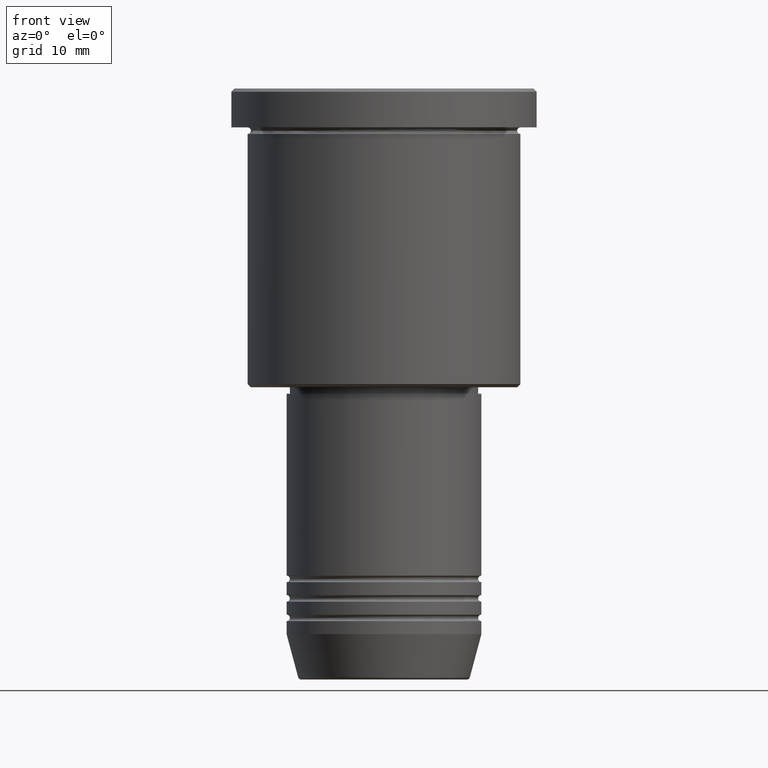
[diagram: clean part render]
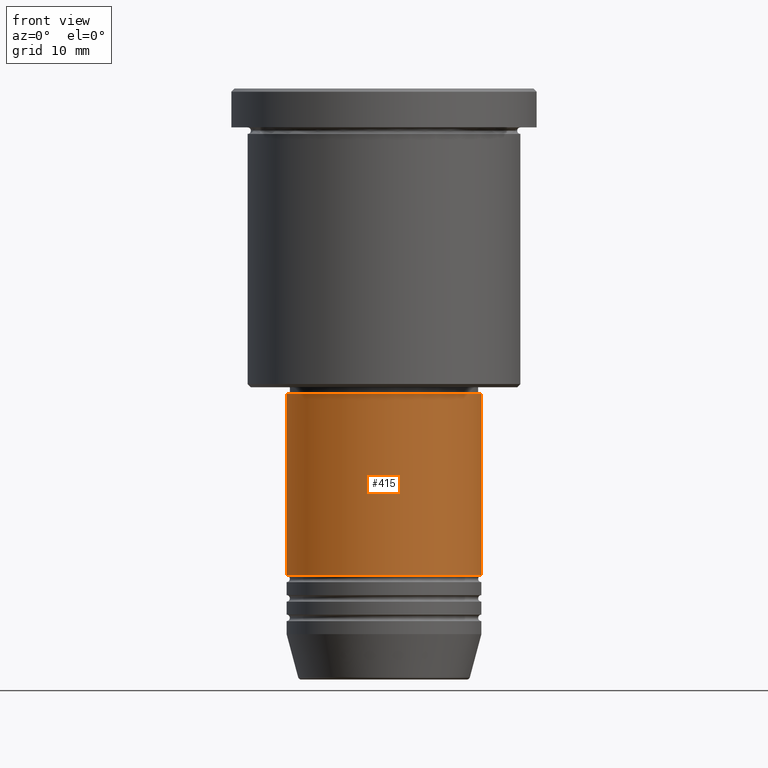
[diagram: same view with one face highlighted and labeled with its STEP entity id]
A machine part, front view. The second image highlights one B-rep face of the part: STEP entity #415.
In plain terms, the highlighted cylindrical surface (partial cylindrical patch) has radius 15 mm, axis along (-0, -0, 1).
Its self-contained STEP definition (entity closure, byte-faithful):
#46 = AXIS2_PLACEMENT_3D ( 'NONE', #902, #444, #345 ) ;
#59 = DIRECTION ( 'NONE',  ( 1.000000000000000000, 0.000000000000000000, 0.000000000000000000 ) ) ;
#162 = CIRCLE ( 'NONE', #846, 15.00000000000000000 ) ;
#183 = AXIS2_PLACEMENT_3D ( 'NONE', #801, #890, #59 ) ;
#197 = LINE ( 'NONE', #583, #1071 ) ;
#200 = EDGE_CURVE ( 'NONE', #421, #1105, #197, .T. ) ;
#345 = DIRECTION ( 'NONE',  ( 1.000000000000000000, 0.000000000000000000, 0.000000000000000000 ) ) ;
#355 = LINE ( 'NONE', #734, #513 ) ;
#368 = EDGE_CURVE ( 'NONE', #1105, #432, #162, .T. ) ;
#415 = ADVANCED_FACE ( 'NONE', ( #885 ), #725, .T. ) ;
#421 = VERTEX_POINT ( 'NONE', #451 ) ;
#432 = VERTEX_POINT ( 'NONE', #795 ) ;
#444 = DIRECTION ( 'NONE',  ( -0.000000000000000000, -0.000000000000000000, 1.000000000000000000 ) ) ;
#451 = CARTESIAN_POINT ( 'NONE',  ( -15.00000000000000000, 1.836970198721029589E-15, -74.99999999999997158 ) ) ;
#461 = EDGE_CURVE ( 'NONE', #804, #432, #355, .T. ) ;
#476 = DIRECTION ( 'NONE',  ( -0.000000000000000000, -0.000000000000000000, 1.000000000000000000 ) ) ;
#493 = EDGE_LOOP ( 'NONE', ( #539, #515, #1090, #988 ) ) ;
#513 = VECTOR ( 'NONE', #476, 1000.000000000000000 ) ;
#515 = ORIENTED_EDGE ( 'NONE', *, *, #1043, .T. ) ;
#539 = ORIENTED_EDGE ( 'NONE', *, *, #200, .F. ) ;
#583 = CARTESIAN_POINT ( 'NONE',  ( -15.00000000000000000, 1.836970198721029589E-15, 0.000000000000000000 ) ) ;
#617 = CARTESIAN_POINT ( 'NONE',  ( 15.00000000000000000, 0.000000000000000000, -74.99999999999997158 ) ) ;
#725 = CYLINDRICAL_SURFACE ( 'NONE', #46, 15.00000000000000000 ) ;
#734 = CARTESIAN_POINT ( 'NONE',  ( 15.00000000000000000, 0.000000000000000000, 0.000000000000000000 ) ) ;
#760 = CARTESIAN_POINT ( 'NONE',  ( -15.00000000000000000, 1.836970198721029589E-15, -46.99999999999997158 ) ) ;
#795 = CARTESIAN_POINT ( 'NONE',  ( 15.00000000000000000, 0.000000000000000000, -46.99999999999997158 ) ) ;
#801 = CARTESIAN_POINT ( 'NONE',  ( 0.000000000000000000, 0.000000000000000000, -74.99999999999997158 ) ) ;
#804 = VERTEX_POINT ( 'NONE', #617 ) ;
#846 = AXIS2_PLACEMENT_3D ( 'NONE', #1157, #1067, #1146 ) ;
#885 = FACE_OUTER_BOUND ( 'NONE', #493, .T. ) ;
#890 = DIRECTION ( 'NONE',  ( -0.000000000000000000, -0.000000000000000000, 1.000000000000000000 ) ) ;
#902 = CARTESIAN_POINT ( 'NONE',  ( 0.000000000000000000, 0.000000000000000000, 0.000000000000000000 ) ) ;
#937 = DIRECTION ( 'NONE',  ( -0.000000000000000000, -0.000000000000000000, 1.000000000000000000 ) ) ;
#958 = CIRCLE ( 'NONE', #183, 15.00000000000000000 ) ;
#988 = ORIENTED_EDGE ( 'NONE', *, *, #368, .F. ) ;
#1043 = EDGE_CURVE ( 'NONE', #421, #804, #958, .T. ) ;
#1067 = DIRECTION ( 'NONE',  ( -0.000000000000000000, -0.000000000000000000, 1.000000000000000000 ) ) ;
#1071 = VECTOR ( 'NONE', #937, 1000.000000000000000 ) ;
#1090 = ORIENTED_EDGE ( 'NONE', *, *, #461, .T. ) ;
#1105 = VERTEX_POINT ( 'NONE', #760 ) ;
#1146 = DIRECTION ( 'NONE',  ( 1.000000000000000000, 0.000000000000000000, 0.000000000000000000 ) ) ;
#1157 = CARTESIAN_POINT ( 'NONE',  ( 0.000000000000000000, 0.000000000000000000, -46.99999999999997158 ) ) ;